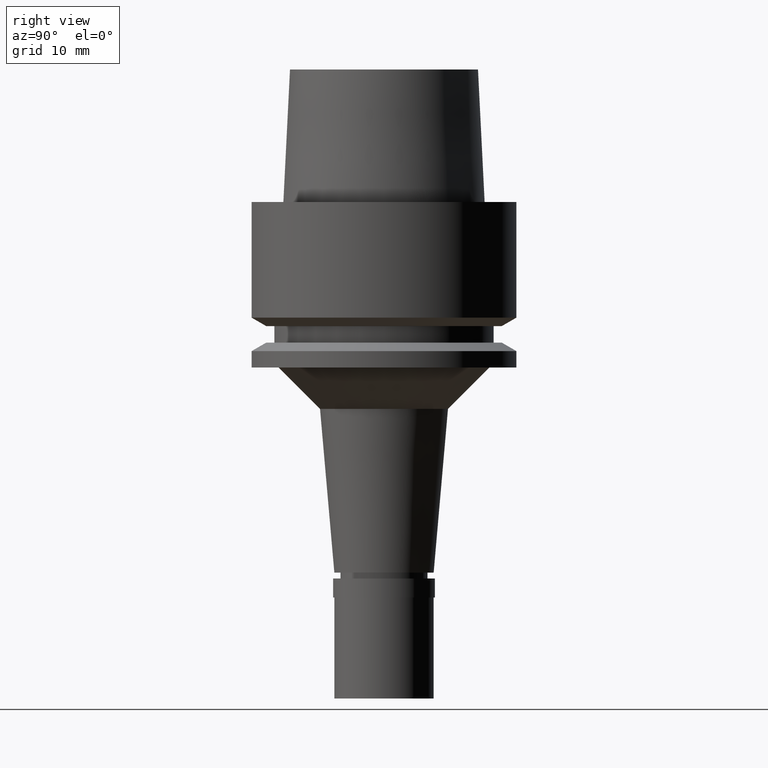
[diagram: clean part render]
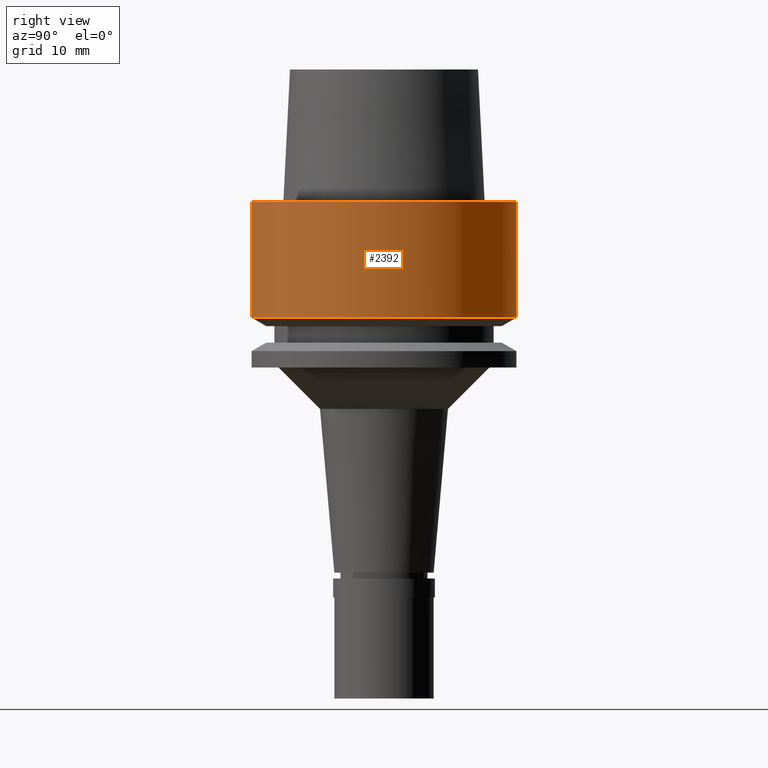
[diagram: same view with one face highlighted and labeled with its STEP entity id]
A machine part, right view. The second image highlights one B-rep face of the part: STEP entity #2392.
In plain terms, the highlighted cylindrical surface (partial cylindrical patch) has radius 16 mm, axis along (0, 0, -1).
Its self-contained STEP definition (entity closure, byte-faithful):
#70 = DIRECTION ( 'NONE',  ( 0.0000000000000000000, 6.772870976582999535E-14, -1.000000000000000000 ) ) ;
#162 = DIRECTION ( 'NONE',  ( 0.0000000000000000000, 1.000000000000000000, 0.0000000000000000000 ) ) ;
#223 = VERTEX_POINT ( 'NONE', #2178 ) ;
#227 = ORIENTED_EDGE ( 'NONE', *, *, #1275, .T. ) ;
#245 = CARTESIAN_POINT ( 'NONE',  ( 0.0000000000000000000, 0.0000000000000000000, 19.59999999999999787 ) ) ;
#280 = ORIENTED_EDGE ( 'NONE', *, *, #1968, .T. ) ;
#415 = VERTEX_POINT ( 'NONE', #954 ) ;
#597 = VECTOR ( 'NONE', #70, 1000.000000000000000 ) ;
#672 = FACE_OUTER_BOUND ( 'NONE', #1413, .T. ) ;
#684 = CYLINDRICAL_SURFACE ( 'NONE', #732, 16.00000000000000000 ) ;
#726 = EDGE_CURVE ( 'NONE', #415, #2356, #2099, .T. ) ;
#732 = AXIS2_PLACEMENT_3D ( 'NONE', #245, #2102, #1318 ) ;
#738 = ORIENTED_EDGE ( 'NONE', *, *, #726, .T. ) ;
#740 = AXIS2_PLACEMENT_3D ( 'NONE', #744, #1787, #162 ) ;
#744 = CARTESIAN_POINT ( 'NONE',  ( 0.0000000000000000000, 0.0000000000000000000, -1.776356839399999922E-14 ) ) ;
#954 = CARTESIAN_POINT ( 'NONE',  ( 0.0000000000000000000, -16.00000000000000000, -1.776356839399999922E-14 ) ) ;
#1015 = CARTESIAN_POINT ( 'NONE',  ( 0.0000000000000000000, -16.00000000000000000, -1.184237892934000027E-14 ) ) ;
#1042 = ORIENTED_EDGE ( 'NONE', *, *, #2421, .F. ) ;
#1071 = CARTESIAN_POINT ( 'NONE',  ( 0.0000000000000000000, 16.00000000000000000, -1.184237892934000027E-14 ) ) ;
#1275 = EDGE_CURVE ( 'NONE', #1562, #415, #1339, .T. ) ;
#1318 = DIRECTION ( 'NONE',  ( 0.0000000000000000000, -1.000000000000000000, 0.0000000000000000000 ) ) ;
#1339 = CIRCLE ( 'NONE', #740, 16.00000000000000000 ) ;
#1413 = EDGE_LOOP ( 'NONE', ( #227, #738, #280, #1042 ) ) ;
#1418 = CARTESIAN_POINT ( 'NONE',  ( 0.0000000000000000000, -16.00000000000000000, -13.97927405783999966 ) ) ;
#1562 = VERTEX_POINT ( 'NONE', #1940 ) ;
#1787 = DIRECTION ( 'NONE',  ( 0.0000000000000000000, 0.0000000000000000000, -1.000000000000000000 ) ) ;
#1925 = DIRECTION ( 'NONE',  ( 0.0000000000000000000, -6.772870976582999535E-14, -1.000000000000000000 ) ) ;
#1936 = LINE ( 'NONE', #1071, #2559 ) ;
#1940 = CARTESIAN_POINT ( 'NONE',  ( 0.0000000000000000000, 16.00000000000000000, -1.184237892934000027E-14 ) ) ;
#1968 = EDGE_CURVE ( 'NONE', #2356, #223, #2441, .T. ) ;
#2061 = AXIS2_PLACEMENT_3D ( 'NONE', #2260, #2520, #2068 ) ;
#2068 = DIRECTION ( 'NONE',  ( 0.0000000000000000000, -1.000000000000000000, 0.0000000000000000000 ) ) ;
#2099 = LINE ( 'NONE', #1015, #597 ) ;
#2102 = DIRECTION ( 'NONE',  ( 0.0000000000000000000, 0.0000000000000000000, -1.000000000000000000 ) ) ;
#2178 = CARTESIAN_POINT ( 'NONE',  ( 0.0000000000000000000, 16.00000000000000000, -13.97927405783999966 ) ) ;
#2260 = CARTESIAN_POINT ( 'NONE',  ( 0.0000000000000000000, 0.0000000000000000000, -13.97927405783999966 ) ) ;
#2356 = VERTEX_POINT ( 'NONE', #1418 ) ;
#2392 = ADVANCED_FACE ( 'NONE', ( #672 ), #684, .T. ) ;
#2421 = EDGE_CURVE ( 'NONE', #1562, #223, #1936, .T. ) ;
#2441 = CIRCLE ( 'NONE', #2061, 16.00000000000000000 ) ;
#2520 = DIRECTION ( 'NONE',  ( 0.0000000000000000000, 0.0000000000000000000, 1.000000000000000000 ) ) ;
#2559 = VECTOR ( 'NONE', #1925, 1000.000000000000000 ) ;